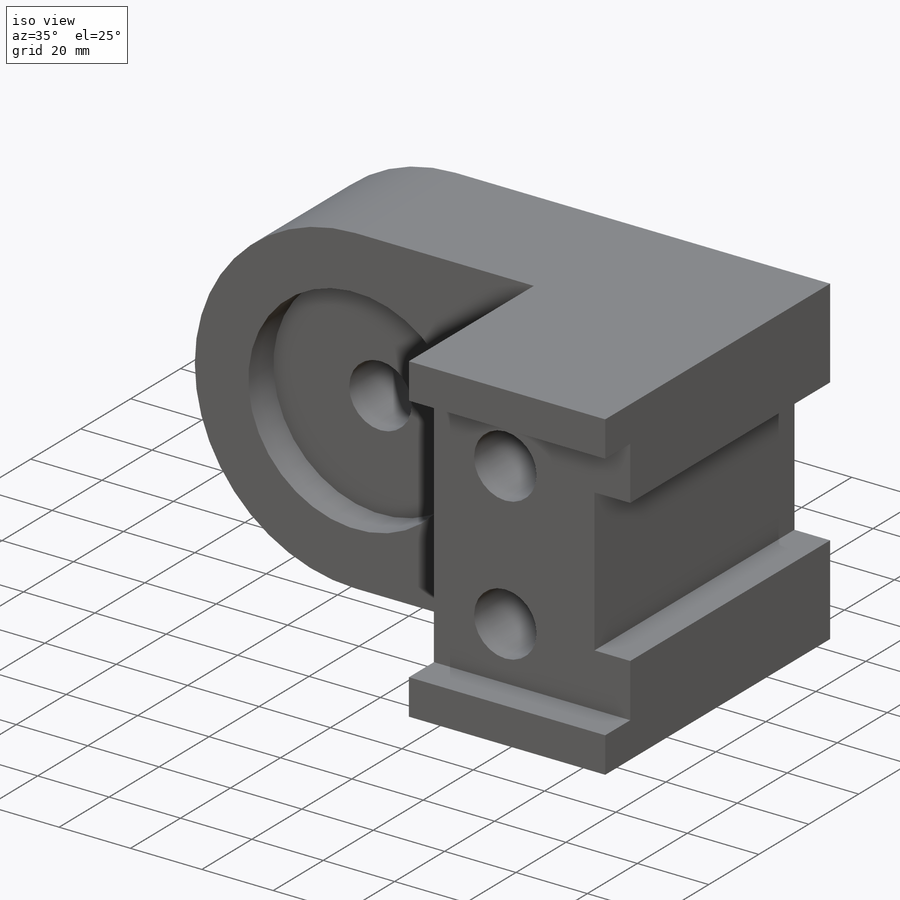
[diagram: iso view]
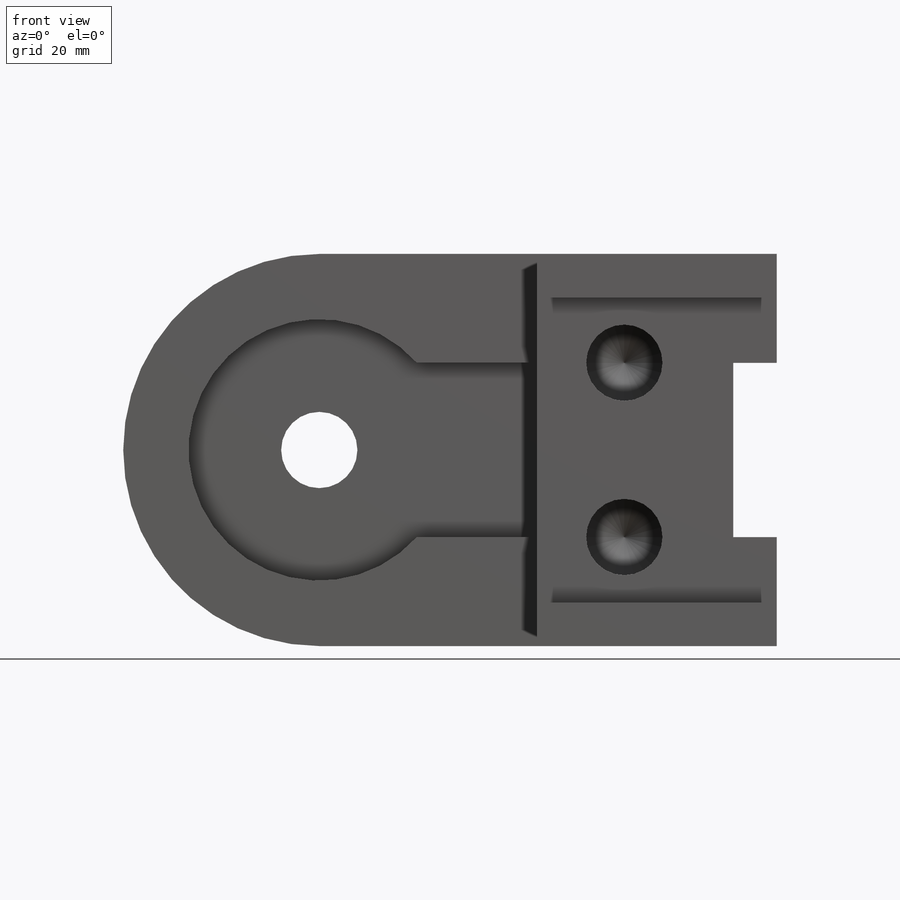
[diagram: front view]
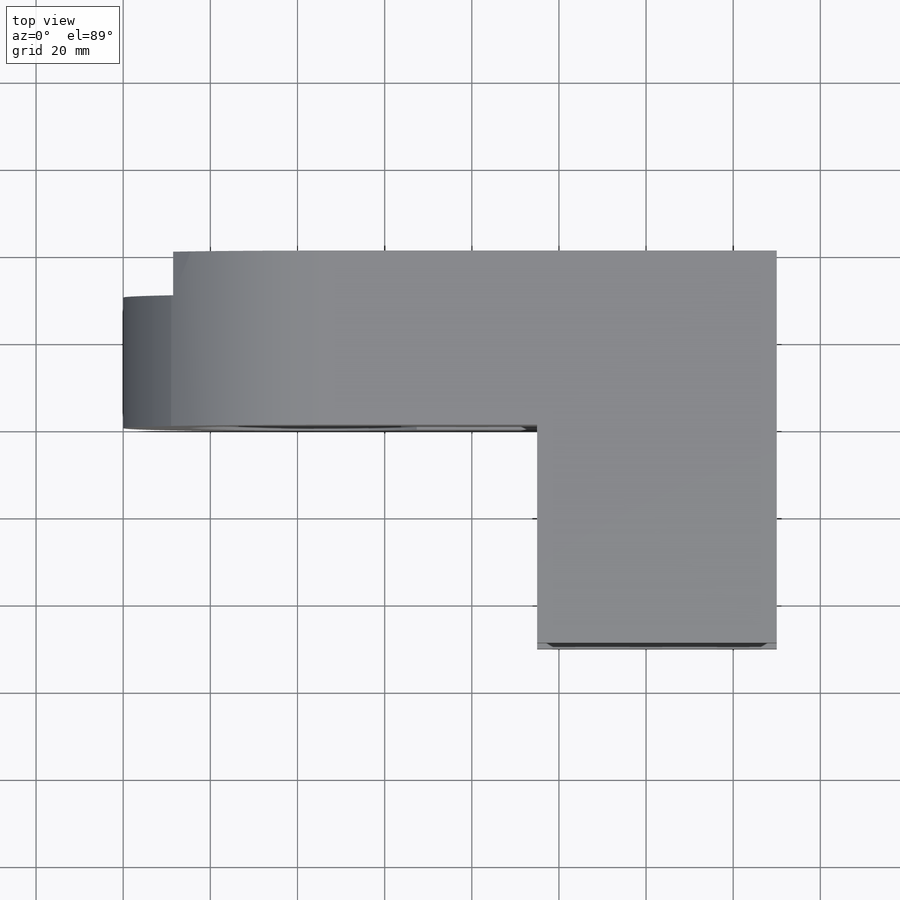
[diagram: top view]
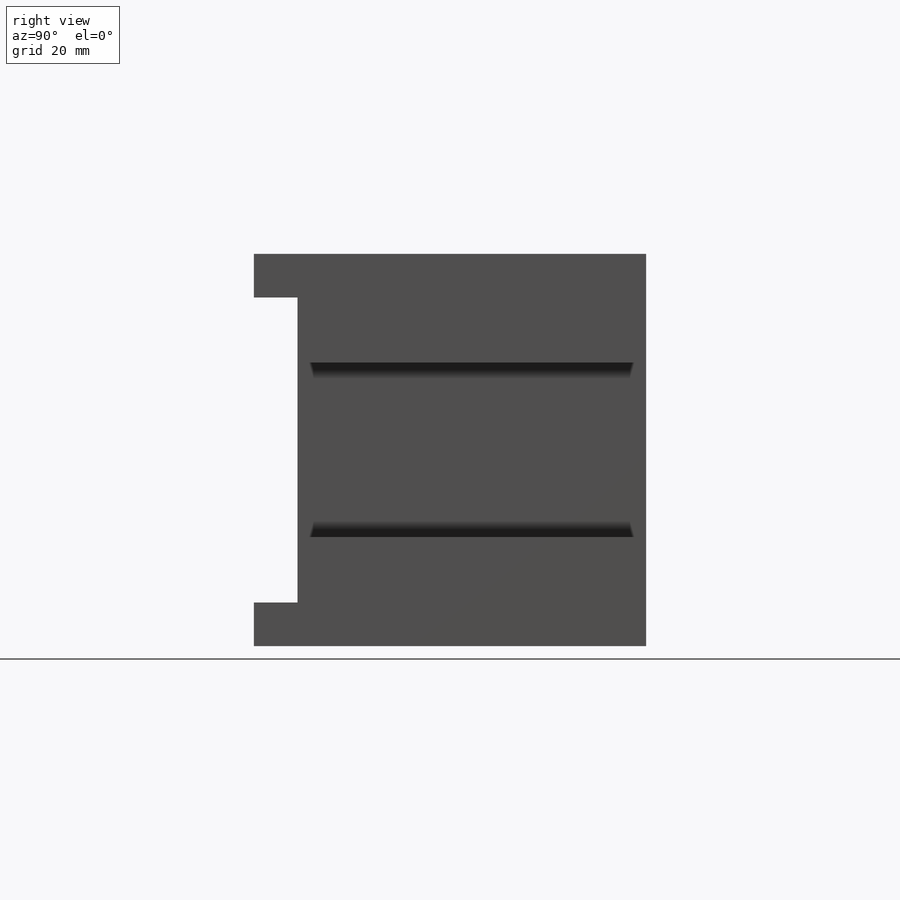
[diagram: right view]
SOLIDWORKS PART (.sldprt)
format: sldprt  version: not decoded by parser v0  size: 333,824 bytes
history: native  units: mm
features: sketch x13, cut_extrude x6, thread x3, hole x2, material x1, extrude x1 (+13 scaffold rows collapsed)
feature tree (39):
  scaffold x13  (default folders/planes/origin — collapsed)
  material  "Material <not specified>"
  sketch  "Sketch1"  dims[D1=150.0mm D2=90.0mm]
  extrude  "Boss-Extrude1"  Depth=90mm
  sketch  "Sketch2"  dims[D1=10.0mm D2=40.0mm D3=25.0mm]
  cut_extrude  "Cut-Extrude1"  Depth=90mm
  sketch  "Sketch3"  dims[D2=45.0mm D1=45.0mm D3=45.0mm D4=45.0mm D5=90.0mm]
  cut_extrude  "Cut-Extrude2"  Depth=90mm
  sketch  "Sketch4"  dims[D1=15.0mm D2=15.0mm D3=40.0mm D4=45.0mm]
  cut_extrude  "Cut-Extrude3"  Depth=10mm
  sketch  "Sketch5"  dims[D1=55.0mm]
  cut_extrude  "Cut-Extrude4"  Depth=50mm
  sketch  "Sketch6"  dims[D1=10.0mm D2=10.0mm D3=10.0mm]
  cut_extrude  "Cut-Extrude6"  Depth=94mm
  sketch  "Sketch7"  dims[D1=60.0mm D2=40.0mm D3=25.0mm]
  cut_extrude  "Cut-Extrude8"  Depth=10mm
  sketch  "Sketch8"  dims[D1=35.0mm D2=35.0mm D3=25.0mm D4=25.0mm]
  hole  "M20 Tapped Hole2"  Diameter=17.5mm Depth=25mm
  sketch  "3DSketch2"
  sketch  "Sketch10"  dims[hole-wizard template sketch: 47 standard entries collapsed; hole parameters kept: c15.Tap Drill Depth=25.0mm c15.D3=~14.816244mm c15.Drill Angle=118.0deg]
  thread  "Hole Thread3"  Diameter=25mm  [1 undecoded]
  thread  "Hole Thread4"  Diameter=25mm  [1 undecoded]
  sketch  "Sketch11"
  hole  "M20 Tapped Hole3"  Diameter=17.5mm Depth=37.5mm
  sketch  "3DSketch3"
  sketch  "Sketch12"  dims[hole-wizard template sketch: 47 standard entries collapsed; hole parameters kept: c15.Tap Drill Depth=37.5mm c15.D3=~14.816244mm c15.Drill Angle=118.0deg]
  thread  "Hole Thread5"  Diameter=30mm  [1 undecoded]
decode coverage: 22 of 25 modeling features carry decoded parameters
note: ~ marks probable driven/reference dimensions
note: 3 parameter values undecoded
note: suppression state not decoded; provenance and decode notes live in map.json
